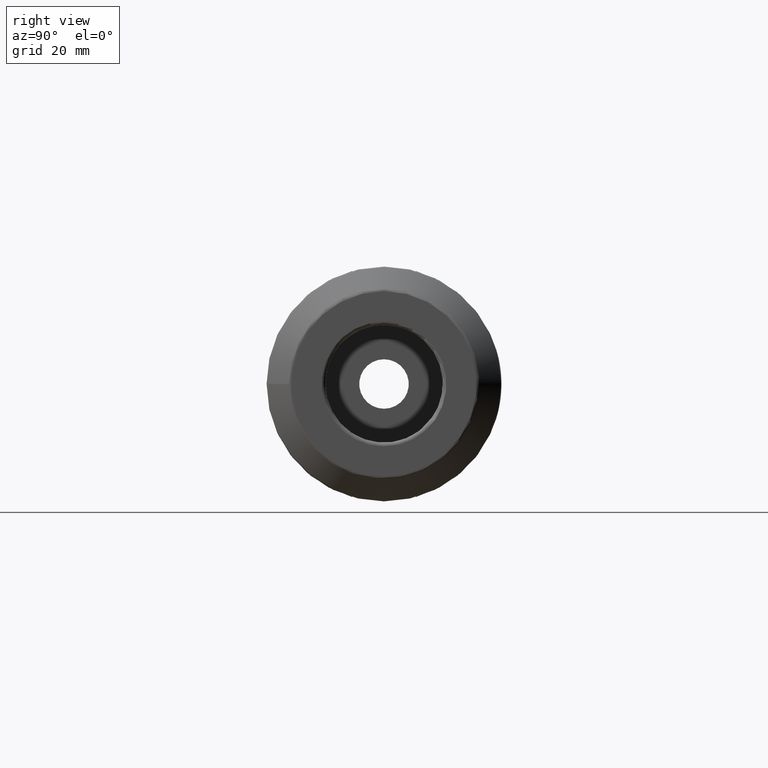
[diagram: clean part render]
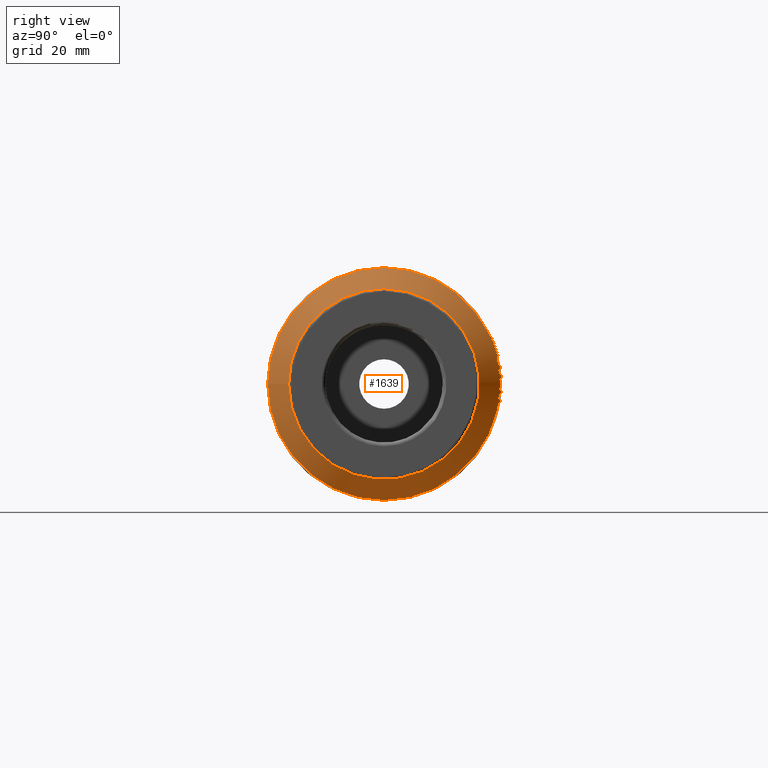
[diagram: same view with one face highlighted and labeled with its STEP entity id]
A machine part, right view. The second image highlights one B-rep face of the part: STEP entity #1639.
In plain terms, the highlighted conical surface has half-angle 45 deg.
Its self-contained STEP definition (entity closure, byte-faithful):
#158=FACE_OUTER_BOUND('',#254,.T.);
#254=EDGE_LOOP('',(#1167,#1168,#1169,#1170,#1171,#1172));
#416=CIRCLE('',#1771,31.4571067811865);
#417=CIRCLE('',#1772,31.4571067811865);
#421=CIRCLE('',#1777,25.7928932188135);
#422=CIRCLE('',#1778,25.7928932188135);
#496=LINE('',#2759,#586);
#586=VECTOR('',#2023,28.625);
#703=VERTEX_POINT('',#2746);
#704=VERTEX_POINT('',#2747);
#707=VERTEX_POINT('',#2756);
#708=VERTEX_POINT('',#2757);
#884=EDGE_CURVE('',#703,#704,#416,.T.);
#885=EDGE_CURVE('',#704,#703,#417,.T.);
#889=EDGE_CURVE('',#707,#708,#421,.T.);
#890=EDGE_CURVE('',#707,#704,#496,.T.);
#891=EDGE_CURVE('',#708,#707,#422,.T.);
#1167=ORIENTED_EDGE('',*,*,#889,.F.);
#1168=ORIENTED_EDGE('',*,*,#890,.T.);
#1169=ORIENTED_EDGE('',*,*,#884,.F.);
#1170=ORIENTED_EDGE('',*,*,#885,.F.);
#1171=ORIENTED_EDGE('',*,*,#890,.F.);
#1172=ORIENTED_EDGE('',*,*,#891,.F.);
#1614=CONICAL_SURFACE('',#1776,28.625,0.785398163397447);
#1639=ADVANCED_FACE('',(#158),#1614,.T.);
#1771=AXIS2_PLACEMENT_3D('',#2748,#2009,#2010);
#1772=AXIS2_PLACEMENT_3D('',#2749,#2011,#2012);
#1776=AXIS2_PLACEMENT_3D('',#2755,#2019,#2020);
#1777=AXIS2_PLACEMENT_3D('',#2758,#2021,#2022);
#1778=AXIS2_PLACEMENT_3D('',#2760,#2024,#2025);
#2009=DIRECTION('center_axis',(-1.,0.,0.));
#2010=DIRECTION('ref_axis',(0.,-1.,3.06161699786838E-17));
#2011=DIRECTION('center_axis',(-1.,0.,0.));
#2012=DIRECTION('ref_axis',(0.,-1.,3.06161699786838E-17));
#2019=DIRECTION('center_axis',(-1.,0.,0.));
#2020=DIRECTION('ref_axis',(0.,1.,0.));
#2021=DIRECTION('center_axis',(1.,0.,0.));
#2022=DIRECTION('ref_axis',(0.,-1.,3.06161699786838E-17));
#2023=DIRECTION('',(-0.707106781186549,-0.707106781186546,-8.65956056235492E-17));
#2024=DIRECTION('center_axis',(1.,0.,0.));
#2025=DIRECTION('ref_axis',(0.,-1.,3.06161699786838E-17));
#2746=CARTESIAN_POINT('',(102.042893218813,-3.85238451300166E-15,31.4571067811865));
#2747=CARTESIAN_POINT('',(102.042893218813,-31.4571067811865,-3.85238451300166E-15));
#2748=CARTESIAN_POINT('Origin',(102.042893218813,0.,-4.81548064125207E-15));
#2749=CARTESIAN_POINT('Origin',(102.042893218813,0.,-4.81548064125207E-15));
#2755=CARTESIAN_POINT('Origin',(104.875,0.,0.));
#2756=CARTESIAN_POINT('',(107.707106781187,-25.7928932188135,-3.15871841211694E-15));
#2757=CARTESIAN_POINT('',(107.707106781187,-3.15871841211694E-15,25.7928932188135));
#2758=CARTESIAN_POINT('Origin',(107.707106781187,0.,-3.94839801514617E-15));
#2759=CARTESIAN_POINT('',(104.875,-28.625,-3.5055514625593E-15));
#2760=CARTESIAN_POINT('Origin',(107.707106781187,0.,-3.94839801514617E-15));